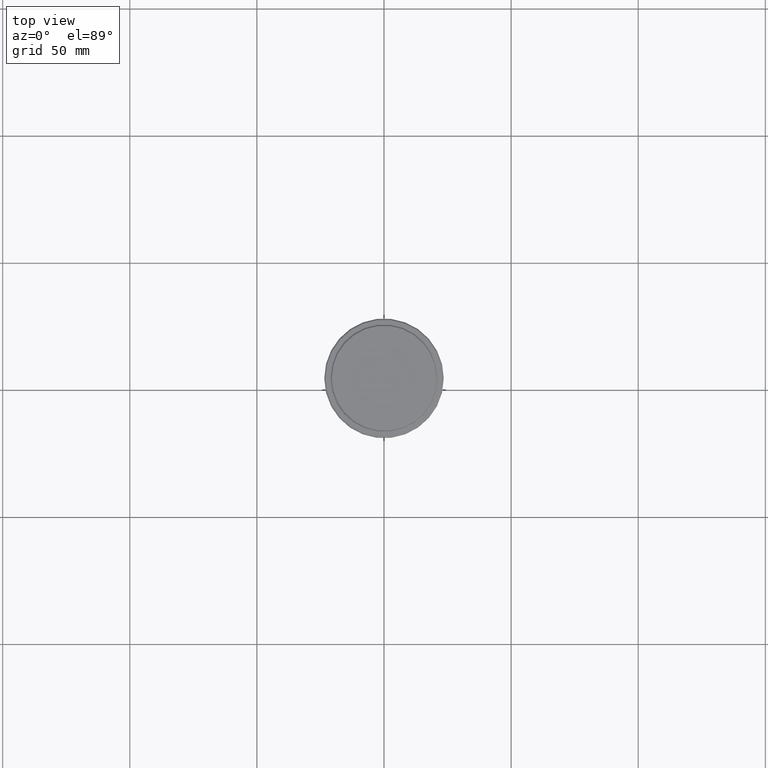
[diagram: clean part render]
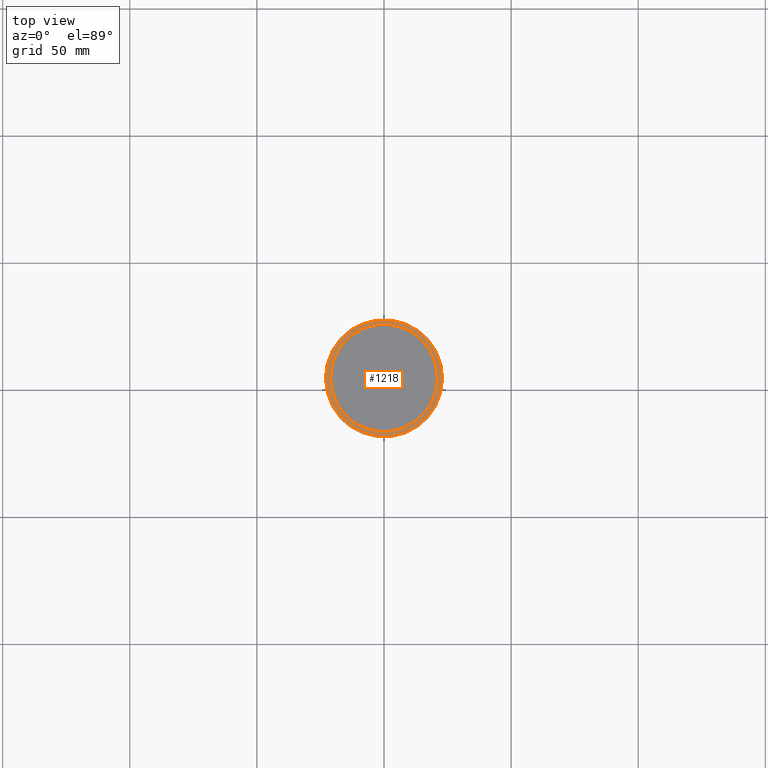
[diagram: same view with one face highlighted and labeled with its STEP entity id]
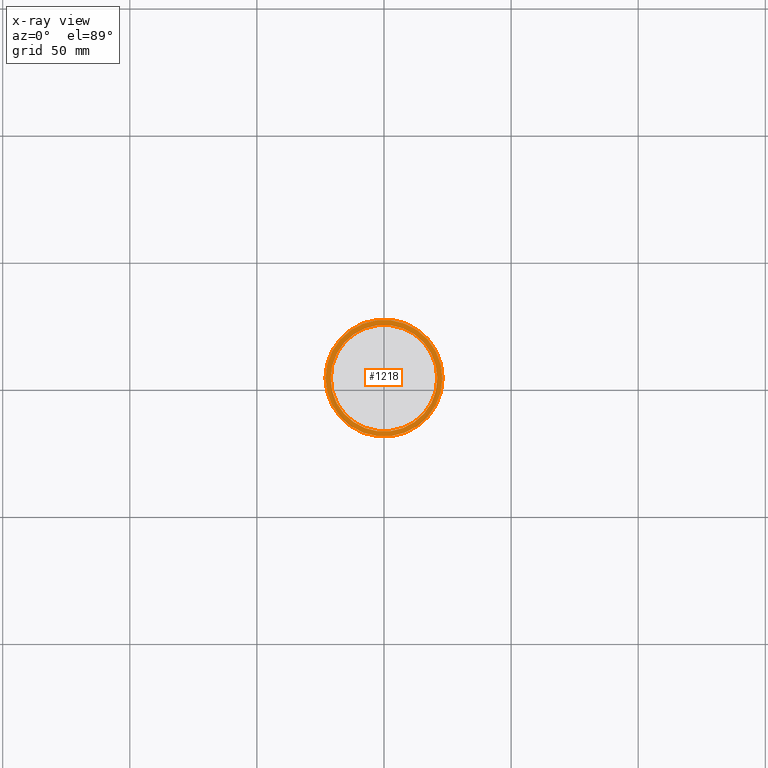
[diagram: x-ray of the same camera — body ghosted, the highlighted face saturated]
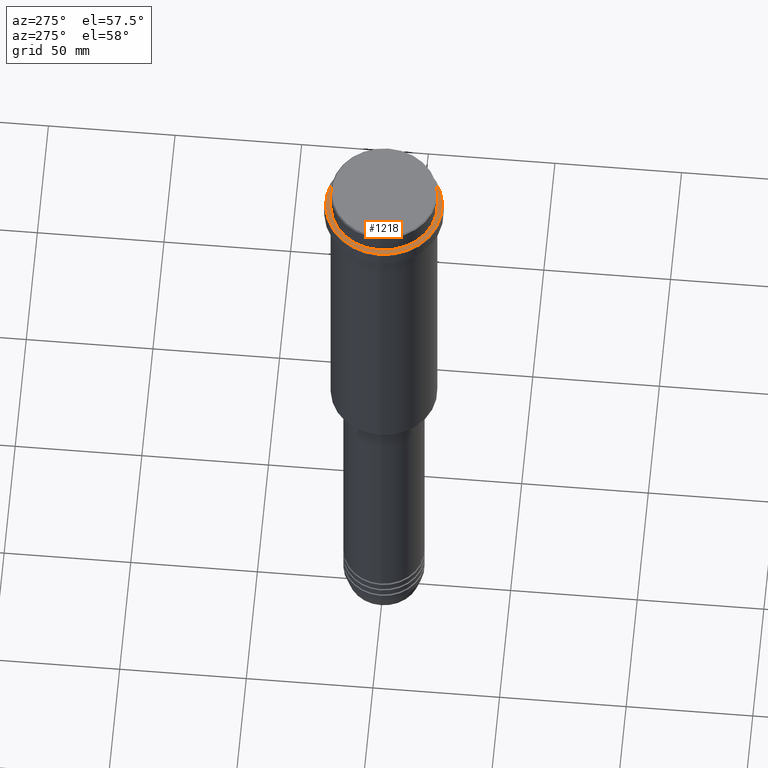
[diagram: same view with one face highlighted and labeled with its STEP entity id]
A machine part, top view. The second image highlights one B-rep face of the part: STEP entity #1218.
The next image is the same camera in x-ray: the body ghosted, the highlighted face saturated — about 0% of this face is hidden behind the body in this view.
A second angle (auxiliary view) of the same face is appended — the face is thin or edge-on in the first view.
In plain terms, the highlighted planar face has unit normal (0, -0, 1).
Its self-contained STEP definition (entity closure, byte-faithful):
#3 = EDGE_LOOP ( 'NONE', ( #384, #598 ) ) ;
#21 = PLANE ( 'NONE',  #828 ) ;
#79 = EDGE_LOOP ( 'NONE', ( #610, #588 ) ) ;
#81 = VERTEX_POINT ( 'NONE', #306 ) ;
#108 = DIRECTION ( 'NONE',  ( 1.000000000000000000, 0.000000000000000000, 0.000000000000000000 ) ) ;
#127 = CARTESIAN_POINT ( 'NONE',  ( 0.000000000000000000, 20.49999999999999645, -9.000000000000001776 ) ) ;
#199 = DIRECTION ( 'NONE',  ( 0.000000000000000000, 0.000000000000000000, -1.000000000000000000 ) ) ;
#220 = CARTESIAN_POINT ( 'NONE',  ( 20.99999999999999289, 0.000000000000000000, -9.000000000000001776 ) ) ;
#254 = EDGE_CURVE ( 'NONE', #432, #1274, #806, .T. ) ;
#258 = AXIS2_PLACEMENT_3D ( 'NONE', #435, #864, #1409 ) ;
#285 = AXIS2_PLACEMENT_3D ( 'NONE', #856, #1268, #1113 ) ;
#306 = CARTESIAN_POINT ( 'NONE',  ( -23.00000000000002487, 0.000000000000000000, -9.000000000000001776 ) ) ;
#384 = ORIENTED_EDGE ( 'NONE', *, *, #767, .T. ) ;
#426 = DIRECTION ( 'NONE',  ( 1.000000000000000000, 0.000000000000000000, 0.000000000000000000 ) ) ;
#432 = VERTEX_POINT ( 'NONE', #623 ) ;
#435 = CARTESIAN_POINT ( 'NONE',  ( 0.000000000000000000, 0.000000000000000000, -9.000000000000001776 ) ) ;
#565 = DIRECTION ( 'NONE',  ( -0.000000000000000000, -0.000000000000000000, 1.000000000000000000 ) ) ;
#571 = DIRECTION ( 'NONE',  ( 0.000000000000000000, -0.000000000000000000, 1.000000000000000000 ) ) ;
#588 = ORIENTED_EDGE ( 'NONE', *, *, #254, .T. ) ;
#597 = CARTESIAN_POINT ( 'NONE',  ( 0.000000000000000000, 0.000000000000000000, -9.000000000000001776 ) ) ;
#598 = ORIENTED_EDGE ( 'NONE', *, *, #707, .T. ) ;
#610 = ORIENTED_EDGE ( 'NONE', *, *, #1166, .T. ) ;
#623 = CARTESIAN_POINT ( 'NONE',  ( -20.99999999999999289, 2.571758278209440872E-15, -9.000000000000001776 ) ) ;
#661 = VERTEX_POINT ( 'NONE', #770 ) ;
#682 = FACE_BOUND ( 'NONE', #79, .T. ) ;
#707 = EDGE_CURVE ( 'NONE', #661, #81, #1011, .T. ) ;
#714 = CIRCLE ( 'NONE', #1258, 23.00000000000002487 ) ;
#767 = EDGE_CURVE ( 'NONE', #81, #661, #714, .T. ) ;
#770 = CARTESIAN_POINT ( 'NONE',  ( 23.00000000000002487, 2.847303808017597717E-15, -9.000000000000001776 ) ) ;
#806 = CIRCLE ( 'NONE', #1348, 20.99999999999999289 ) ;
#828 = AXIS2_PLACEMENT_3D ( 'NONE', #127, #571, #108 ) ;
#856 = CARTESIAN_POINT ( 'NONE',  ( 0.000000000000000000, 0.000000000000000000, -9.000000000000001776 ) ) ;
#864 = DIRECTION ( 'NONE',  ( 0.000000000000000000, 0.000000000000000000, -1.000000000000000000 ) ) ;
#979 = CARTESIAN_POINT ( 'NONE',  ( 0.000000000000000000, 0.000000000000000000, -9.000000000000001776 ) ) ;
#1011 = CIRCLE ( 'NONE', #285, 23.00000000000002487 ) ;
#1113 = DIRECTION ( 'NONE',  ( 1.000000000000000000, 0.000000000000000000, 0.000000000000000000 ) ) ;
#1166 = EDGE_CURVE ( 'NONE', #1274, #432, #1414, .T. ) ;
#1209 = FACE_OUTER_BOUND ( 'NONE', #3, .T. ) ;
#1218 = ADVANCED_FACE ( 'NONE', ( #1209, #682 ), #21, .T. ) ;
#1228 = DIRECTION ( 'NONE',  ( 1.000000000000000000, 0.000000000000000000, 0.000000000000000000 ) ) ;
#1258 = AXIS2_PLACEMENT_3D ( 'NONE', #597, #565, #1228 ) ;
#1268 = DIRECTION ( 'NONE',  ( -0.000000000000000000, -0.000000000000000000, 1.000000000000000000 ) ) ;
#1274 = VERTEX_POINT ( 'NONE', #220 ) ;
#1348 = AXIS2_PLACEMENT_3D ( 'NONE', #979, #199, #426 ) ;
#1409 = DIRECTION ( 'NONE',  ( 1.000000000000000000, 0.000000000000000000, 0.000000000000000000 ) ) ;
#1414 = CIRCLE ( 'NONE', #258, 20.99999999999999289 ) ;